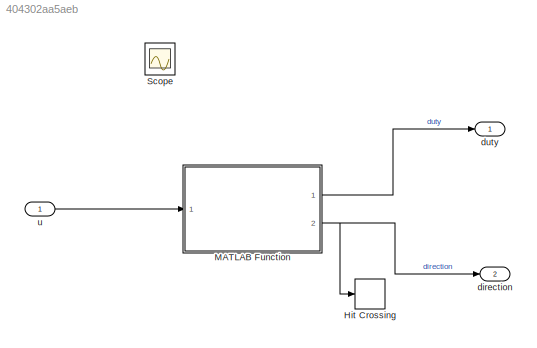
MODEL slx_404302aa5aeb
KIND model
CONFIG AbsTol = auto
CONFIG EnableMultiTasking = off
CONFIG FixedStep = auto
CONFIG MaxStep = auto
CONFIG MinStep = auto
CONFIG PreLoadFcn = load PI_output;
CONFIG RelTol = 1e-3
CONFIG SampleTimeConstraint = Unconstrained
CONFIG Solver = VariableStepAuto
CONFIG SolverName = VariableStepAuto
CONFIG StartTime = 0.0
CONFIG StopTime = 10.0
BLOCK [HitCross] Hit Crossing
  Ports = [1]
  ShowOutputPort = off
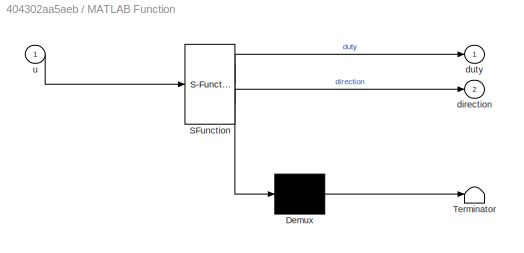
BLOCK [SubSystem] MATLAB Function
  ErrorFcn = Stateflow.Translate.translate
  PermitHierarchicalResolution = ExplicitOnly
  Ports = [1, 2]
  RequestExecContextInheritance = off
  SFBlockType = MATLAB Function
  TreatAsAtomicUnit = on
  Variant = off
BLOCK [Demux] MATLAB Function/ Demux 
  Outputs = 1
  Ports = [1, 1]
BLOCK [S-Function] MATLAB Function/ SFunction 
  EnableBusSupport = on
  FunctionName = sf_sfun
  PortCounts = [1 3]
  Ports = [1, 3]
  SFcnIsStateOwnerBlock = off
  SFunctionDeploymentMode = off
  Tag = Stateflow S-Function chapter2_example_jd 2
BLOCK [Terminator] MATLAB Function/ Terminator 
BLOCK [Outport] MATLAB Function/direction
  IconDisplay = Port number
  Port = 2
BLOCK [Outport] MATLAB Function/duty
  IconDisplay = Port number
BLOCK [Inport] MATLAB Function/u
  IconDisplay = Port number
BLOCK [Scope] Scope
  IOType = viewer
  NumInputPorts = 1
  Ports = []
  ScopeSpecificationString = Simulink.scopes.TimeScopeBlockCfg('CurrentConfiguration', extmgr.ConfigurationSet(extmgr.Configuration('Core','General UI',true),extmgr.Configuration('Core','Source UI',true),extmgr.Configuration('Sources','WiredSimulink',true),extmgr.Configuration('Visuals','Time Domain',true,'SerializedDisplays',{struct('MinYLimReal','-0.00827','MaxYLimReal','0.07072','YLabelReal','','MinYLimMag','0.00000','MaxY...<+2697ch>
BLOCK [Outport] direction
  IconDisplay = Port number
  Port = 2
BLOCK [Outport] duty
  IconDisplay = Port number
BLOCK [Inport] u
  IconDisplay = Port number
LINE MATLAB Function:1 -> duty:1
NET MATLAB Function:2 -> Hit Crossing:1, direction:1
LINE u:1 -> MATLAB Function:1
note: NET lines group one-source signal fan-out (src -> all destinations, sorted); 1:1 wires keep LINE
CHART MATLAB Function states=1 transitions=1
  STATE_LABEL 'eML_blk_kernel()'
  STATE_LABEL 'SCRIPT:\nfunction [duty, direction] = u2dd(u)\n% Set the direction and duty = abs(u)\n\nif (u>=0)\n    duty = u;\n    direction = 1;\nelse\n    duty = -u;\n    direction = -1;\nend\n\n% Saturate duty cycle to 1\nif duty > 1\n    duty = 1;\nend\n\ny = u;\n'
